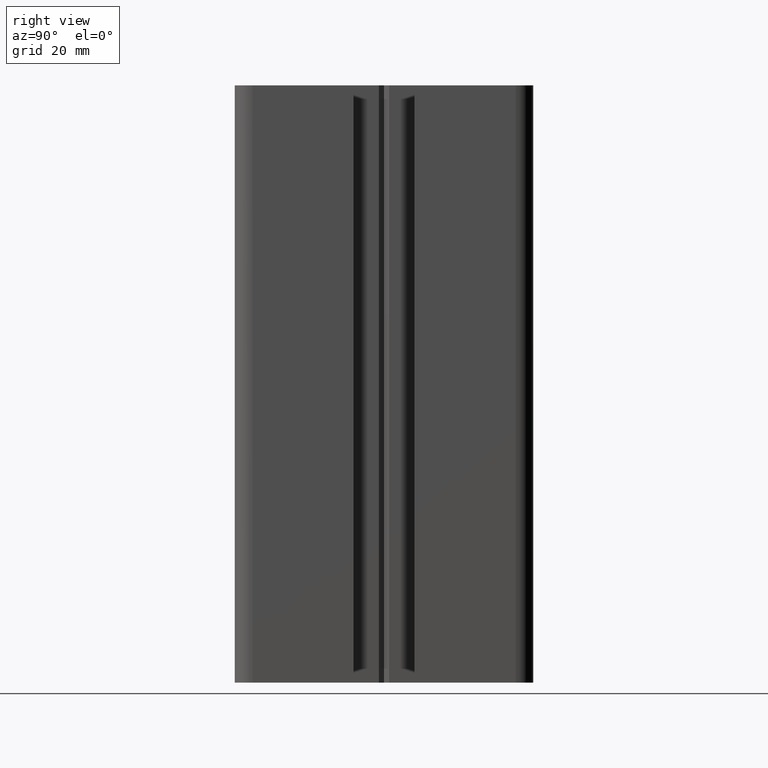
[diagram: clean part render]
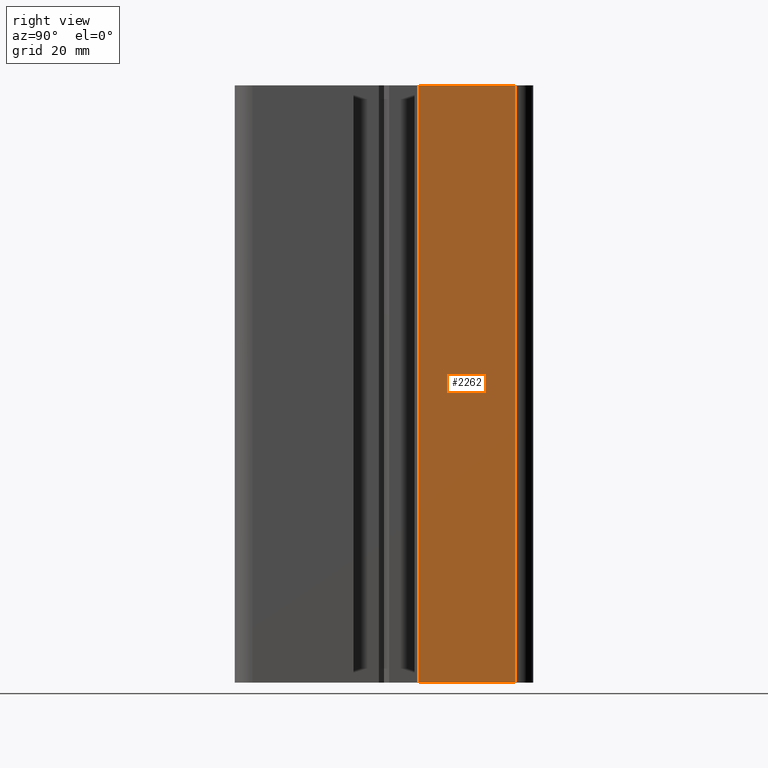
[diagram: same view with one face highlighted and labeled with its STEP entity id]
A machine part, right view. The second image highlights one B-rep face of the part: STEP entity #2262.
In plain terms, the highlighted planar face has unit normal (-1, -0, 0).
Its self-contained STEP definition (entity closure, byte-faithful):
#839 = VERTEX_POINT ( 'NONE', #4485 ) ;
#890 = VERTEX_POINT ( 'NONE', #4564 ) ;
#891 = EDGE_CURVE ( 'NONE', #839, #890, #4546, .T. ) ;
#1414 = VERTEX_POINT ( 'NONE', #5481 ) ;
#1424 = VERTEX_POINT ( 'NONE', #5515 ) ;
#1491 = EDGE_CURVE ( 'NONE', #1414, #1424, #5633, .T. ) ;
#2245 = ORIENTED_EDGE ( 'NONE', *, *, #891, .F. ) ;
#2248 = ORIENTED_EDGE ( 'NONE', *, *, #2259, .T. ) ;
#2259 = EDGE_CURVE ( 'NONE', #839, #1414, #6857, .T. ) ;
#2262 = ADVANCED_FACE ( 'NONE', ( #6865 ), #6853, .F. ) ;
#2274 = EDGE_LOOP ( 'NONE', ( #3004, #2305, #2245, #2248 ) ) ;
#2305 = ORIENTED_EDGE ( 'NONE', *, *, #2308, .F. ) ;
#2308 = EDGE_CURVE ( 'NONE', #890, #1424, #6963, .T. ) ;
#3004 = ORIENTED_EDGE ( 'NONE', *, *, #1491, .T. ) ;
#4485 = CARTESIAN_POINT ( 'NONE',  ( 24.99999999999996100, 5.799999237060610800, 100.0000000000000000 ) ) ;
#4543 = DIRECTION ( 'NONE',  ( -6.424901460296174900E-016, 1.000000000000000000, 0.0000000000000000000 ) ) ;
#4544 = VECTOR ( 'NONE', #4543, 1000.000000000000000 ) ;
#4545 = CARTESIAN_POINT ( 'NONE',  ( 24.99999999999996100, 5.799999237060610800, 100.0000000000000000 ) ) ;
#4546 = LINE ( 'NONE', #4545, #4544 ) ;
#4564 = CARTESIAN_POINT ( 'NONE',  ( 24.99999999999995000, 22.00000000000000000, 100.0000000000000000 ) ) ;
#5481 = CARTESIAN_POINT ( 'NONE',  ( 24.99999999999996100, 5.799999237060610800, 0.0000000000000000000 ) ) ;
#5515 = CARTESIAN_POINT ( 'NONE',  ( 24.99999999999995000, 22.00000000000000000, 0.0000000000000000000 ) ) ;
#5633 = LINE ( 'NONE', #5671, #5670 ) ;
#5669 = DIRECTION ( 'NONE',  ( -6.424901460296174900E-016, 1.000000000000000000, 0.0000000000000000000 ) ) ;
#5670 = VECTOR ( 'NONE', #5669, 1000.000000000000000 ) ;
#5671 = CARTESIAN_POINT ( 'NONE',  ( 24.99999999999996100, 5.799999237060610800, 0.0000000000000000000 ) ) ;
#6848 = DIRECTION ( 'NONE',  ( 6.424901460296174900E-016, -1.000000000000000000, 0.0000000000000000000 ) ) ;
#6849 = DIRECTION ( 'NONE',  ( -1.000000000000000000, -6.424901460296174900E-016, 0.0000000000000000000 ) ) ;
#6853 = PLANE ( 'NONE',  #6873 ) ;
#6854 = DIRECTION ( 'NONE',  ( -0.0000000000000000000, -0.0000000000000000000, -1.000000000000000000 ) ) ;
#6855 = VECTOR ( 'NONE', #6854, 1000.000000000000000 ) ;
#6856 = CARTESIAN_POINT ( 'NONE',  ( 24.99999999999996100, 5.799999237060610800, 100.0000000000000000 ) ) ;
#6857 = LINE ( 'NONE', #6856, #6855 ) ;
#6858 = CARTESIAN_POINT ( 'NONE',  ( 24.99999999999996100, 5.799999237060610800, 100.0000000000000000 ) ) ;
#6865 = FACE_OUTER_BOUND ( 'NONE', #2274, .T. ) ;
#6873 = AXIS2_PLACEMENT_3D ( 'NONE', #6858, #6849, #6848 ) ;
#6960 = DIRECTION ( 'NONE',  ( -0.0000000000000000000, -0.0000000000000000000, -1.000000000000000000 ) ) ;
#6961 = VECTOR ( 'NONE', #6960, 1000.000000000000000 ) ;
#6962 = CARTESIAN_POINT ( 'NONE',  ( 24.99999999999995000, 22.00000000000000000, 100.0000000000000000 ) ) ;
#6963 = LINE ( 'NONE', #6962, #6961 ) ;